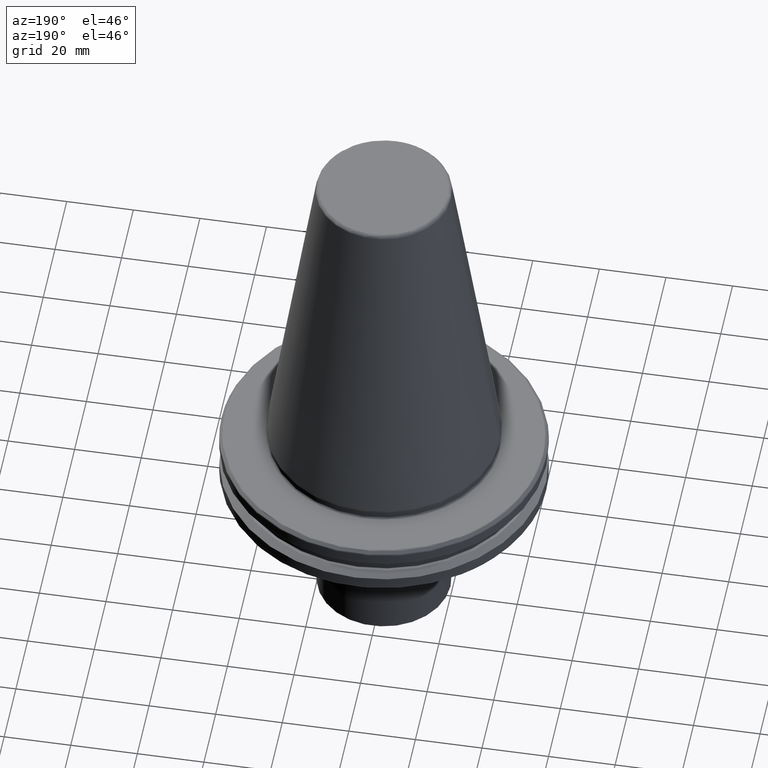
[diagram: clean part render]
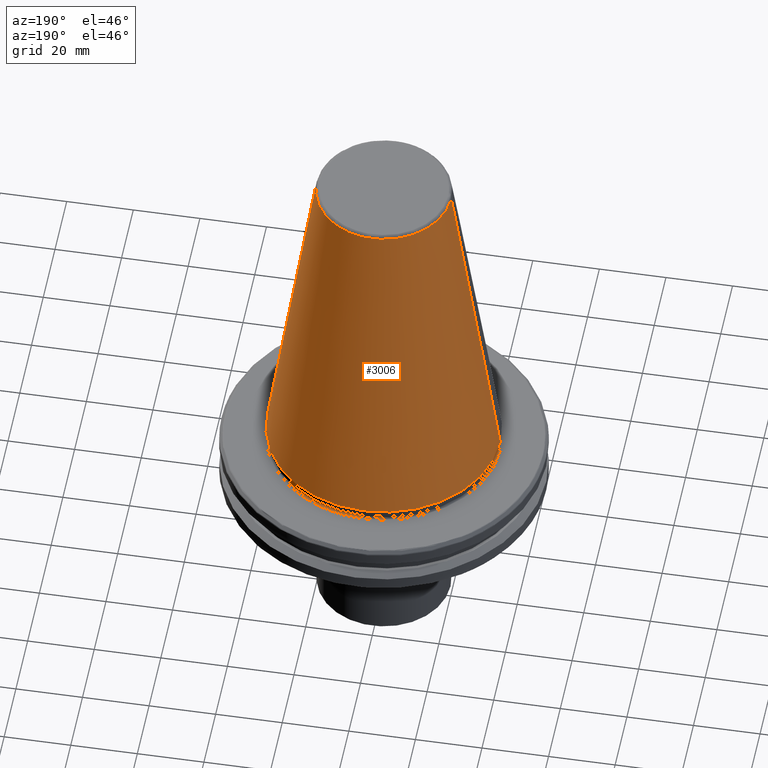
[diagram: same view with one face highlighted and labeled with its STEP entity id]
A machine part, auxiliary view. The second image highlights one B-rep face of the part: STEP entity #3006.
In plain terms, the highlighted conical surface has half-angle 8.297 deg.
Its self-contained STEP definition (entity closure, byte-faithful):
#33 = EDGE_CURVE ( 'NONE', #520, #2191, #686, .T. ) ;
#413 = EDGE_CURVE ( 'NONE', #2191, #2788, #1244, .T. ) ;
#489 = EDGE_CURVE ( 'NONE', #579, #2788, #1198, .T. ) ;
#515 = CARTESIAN_POINT ( 'NONE',  ( -20.21110778703758000, 0.0000000000000000000, 100.8943082272673000 ) ) ;
#520 = VERTEX_POINT ( 'NONE', #526 ) ;
#526 = CARTESIAN_POINT ( 'NONE',  ( 20.21110778703758000, 3.376112895941951000E-015, 100.8943082272673000 ) ) ;
#570 = EDGE_LOOP ( 'NONE', ( #1952, #758, #2650, #2938 ) ) ;
#579 = VERTEX_POINT ( 'NONE', #515 ) ;
#584 = CARTESIAN_POINT ( 'NONE',  ( -34.92499999999999700, 0.0000000000000000000, -1.387778780781445700E-014 ) ) ;
#686 = LINE ( 'NONE', #2101, #1478 ) ;
#704 = CARTESIAN_POINT ( 'NONE',  ( 0.0000000000000000000, 0.0000000000000000000, 100.8943082272673000 ) ) ;
#751 = CARTESIAN_POINT ( 'NONE',  ( -34.92500000000000400, 4.277078946022131700E-015, 0.0000000000000000000 ) ) ;
#758 = ORIENTED_EDGE ( 'NONE', *, *, #33, .T. ) ;
#782 = CARTESIAN_POINT ( 'NONE',  ( 34.92500000000000400, 0.0000000000000000000, 0.0000000000000000000 ) ) ;
#854 = VECTOR ( 'NONE', #982, 1000.000000000000000 ) ;
#976 = DIRECTION ( 'NONE',  ( -1.000000000000000000, 0.0000000000000000000, 0.0000000000000000000 ) ) ;
#978 = DIRECTION ( 'NONE',  ( -0.0000000000000000000, -0.0000000000000000000, 1.000000000000000000 ) ) ;
#980 = CARTESIAN_POINT ( 'NONE',  ( 0.0000000000000000000, 0.0000000000000000000, 0.0000000000000000000 ) ) ;
#982 = DIRECTION ( 'NONE',  ( -0.1443082272673069400, 0.0000000000000000000, -0.9895327864921743500 ) ) ;
#1089 = DIRECTION ( 'NONE',  ( 0.0000000000000000000, 0.0000000000000000000, -1.000000000000000000 ) ) ;
#1198 = LINE ( 'NONE', #584, #854 ) ;
#1244 = CIRCLE ( 'NONE', #1767, 34.92499999999999700 ) ;
#1478 = VECTOR ( 'NONE', #2107, 1000.000000000000000 ) ;
#1767 = AXIS2_PLACEMENT_3D ( 'NONE', #980, #978, #976 ) ;
#1909 = AXIS2_PLACEMENT_3D ( 'NONE', #704, #2377, #2965 ) ;
#1931 = CIRCLE ( 'NONE', #1909, 20.21110778703758000 ) ;
#1952 = ORIENTED_EDGE ( 'NONE', *, *, #2603, .T. ) ;
#2101 = CARTESIAN_POINT ( 'NONE',  ( 34.92499999999999700, 4.277078946022130900E-015, -1.387778780781445700E-014 ) ) ;
#2107 = DIRECTION ( 'NONE',  ( 0.1443082272673069400, 1.767266086135362400E-017, -0.9895327864921743500 ) ) ;
#2191 = VERTEX_POINT ( 'NONE', #782 ) ;
#2377 = DIRECTION ( 'NONE',  ( 0.0000000000000000000, 0.0000000000000000000, -1.000000000000000000 ) ) ;
#2487 = AXIS2_PLACEMENT_3D ( 'NONE', #2499, #1089, #2726 ) ;
#2499 = CARTESIAN_POINT ( 'NONE',  ( 0.0000000000000000000, 0.0000000000000000000, -1.387778780781445700E-014 ) ) ;
#2603 = EDGE_CURVE ( 'NONE', #579, #520, #1931, .T. ) ;
#2650 = ORIENTED_EDGE ( 'NONE', *, *, #413, .T. ) ;
#2712 = FACE_OUTER_BOUND ( 'NONE', #570, .T. ) ;
#2726 = DIRECTION ( 'NONE',  ( -1.000000000000000000, 0.0000000000000000000, 0.0000000000000000000 ) ) ;
#2788 = VERTEX_POINT ( 'NONE', #751 ) ;
#2920 = CONICAL_SURFACE ( 'NONE', #2487, 34.92499999999999700, 0.1448138465474189400 ) ;
#2938 = ORIENTED_EDGE ( 'NONE', *, *, #489, .F. ) ;
#2965 = DIRECTION ( 'NONE',  ( -1.000000000000000000, 0.0000000000000000000, 0.0000000000000000000 ) ) ;
#3006 = ADVANCED_FACE ( 'NONE', ( #2712 ), #2920, .T. ) ;